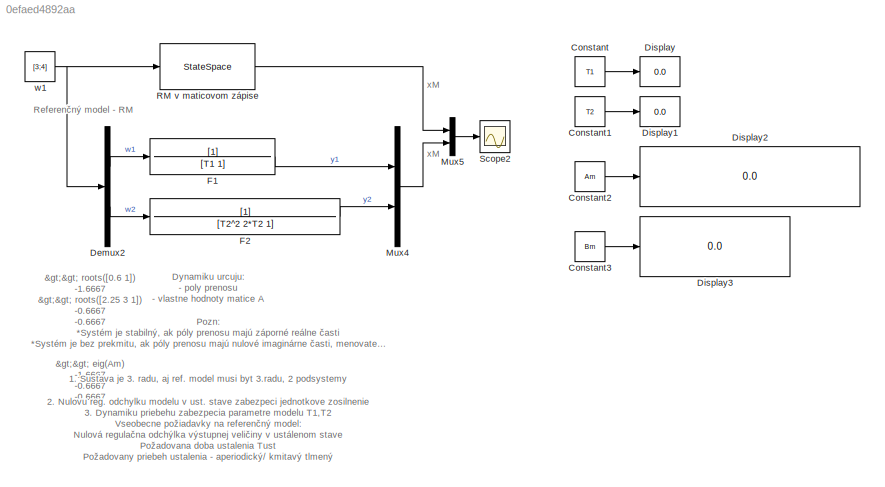
MODEL slx_0efaed4892aa
KIND model
CONFIG AbsTol = auto
CONFIG EnableMultiTasking = on
CONFIG FixedStep = auto
CONFIG MaxStep = auto
CONFIG MinStep = auto
CONFIG RelTol = 1e-3
CONFIG SampleTimeConstraint = Unconstrained
CONFIG SolverName = ode45
CONFIG StartTime = 0.0
CONFIG StopTime = 15
WORKSPACE source: mxarray member
WORKSPACE Am = [-1.66666666667 0 0 0 0 -0.444444444444 0 1 -1.33333333333]
WORKSPACE Bm = [1.66666666667 0 0 0 0 0.444444444444]
WORKSPACE T1 = 0.6
WORKSPACE T2 = 1.5
BLOCK [Constant] Constant
  Value = T1
BLOCK [Constant] Constant1
  Value = T2
BLOCK [Constant] Constant2
  Value = Am
BLOCK [Constant] Constant3
  Value = Bm
BLOCK [Demux] Demux2
  Outputs = 2
BLOCK [Display] Display
  Decimation = 1
BLOCK [Display] Display1
  Decimation = 1
BLOCK [Display] Display2
  Decimation = 1
BLOCK [Display] Display3
  Decimation = 1
BLOCK [TransferFcn] F1
  Denominator = [T1 1]
BLOCK [TransferFcn] F2
  Denominator = [T2^2 2*T2 1]
BLOCK [Mux] Mux4
  DisplayOption = bar
  Inputs = 2
BLOCK [Mux] Mux5
  DisplayOption = bar
  Inputs = 2
BLOCK [StateSpace] RM v maticovom zápise
  A = [-1/T1 0 0; 0 0 1; 0 -1/T2^2 -2/T2]
  B = [1/T1 0; 0 0; 0 1/T2^2]
  C = [1 0 0;0 1 0; 0 0 1]
  D = [0 0;0 0;0 0]
  InitialCondition = 0
BLOCK [Scope] Scope2
  Floating = off
  NumInputPorts = 1
  ScopeSpecificationString = Simulink.scopes.TimeScopeBlockCfg('CurrentConfiguration', extmgr.ConfigurationSet(extmgr.Configuration('Core','General UI',true,'FigureColor',[1 1 1]),extmgr.Configuration('Core','Source UI',true),extmgr.Configuration('Sources','WiredSimulink',true,'DataLoggingVariableName','ScopeData1','SampleTime','1e-2'),extmgr.Configuration('Visuals','Time Domain',true,'SerializedDisplays',{struct('MinYLimReal...<+2412ch>
BLOCK [Constant] w1
  Value = [3;4]
ANNOTATION (root): Dynamiku urcuju: - poly prenosu - vlastne hodnoty matice A
ANNOTATION (root): >> eig(Am) -1.6667 -0.6667 -0.6667
ANNOTATION (root): >> roots([0.6 1]) -1.6667 >> roots([2.25 3 1]) -0.6667 -0.6667
ANNOTATION (root): Pozn: *Systém je stabilný, ak póly prenosu majú záporné reálne časti *Systém je bez prekmitu, ak póly prenosu majú nulové imaginárne časti, menovateľ obsahuje iba reálne korene
ANNOTATION (root): 1. Sustava je 3. radu, aj ref. model musi byt 3.radu, 2 podsystemy 2. Nulovu reg. odchylku modelu v ust. stave zabezpeci jednotkove zosilnenie 3. Dynamiku priebehu zabezpecia parametre modelu T1,T2
ANNOTATION (root): Vseobecne požiadavky na referenčný model: Nulová regulačna odchýlka výstupnej veličiny v ustálenom stave Požadovana doba ustalenia Tust Požadovany priebeh ustalenia - aperiodický/ kmitavý tlmený
ANNOTATION (root): x M
ANNOTATION (root): Referenčný model - RM
LINE Constant1:1 -> Display1:1
LINE Constant2:1 -> Display2:1
LINE Constant3:1 -> Display3:1
LINE Constant:1 -> Display:1
LINE Demux2:1 -> F1:1
LINE Demux2:2 -> F2:1
LINE F1:1 -> Mux4:1
LINE F2:1 -> Mux4:2
LINE Mux4:1 -> Mux5:2
LINE Mux5:1 -> Scope2:1
LINE RM v maticovom zápise:1 -> Mux5:1
NET w1:1 -> Demux2:1, RM v maticovom zápise:1
note: NET lines group one-source signal fan-out (src -> all destinations, sorted); 1:1 wires keep LINE
